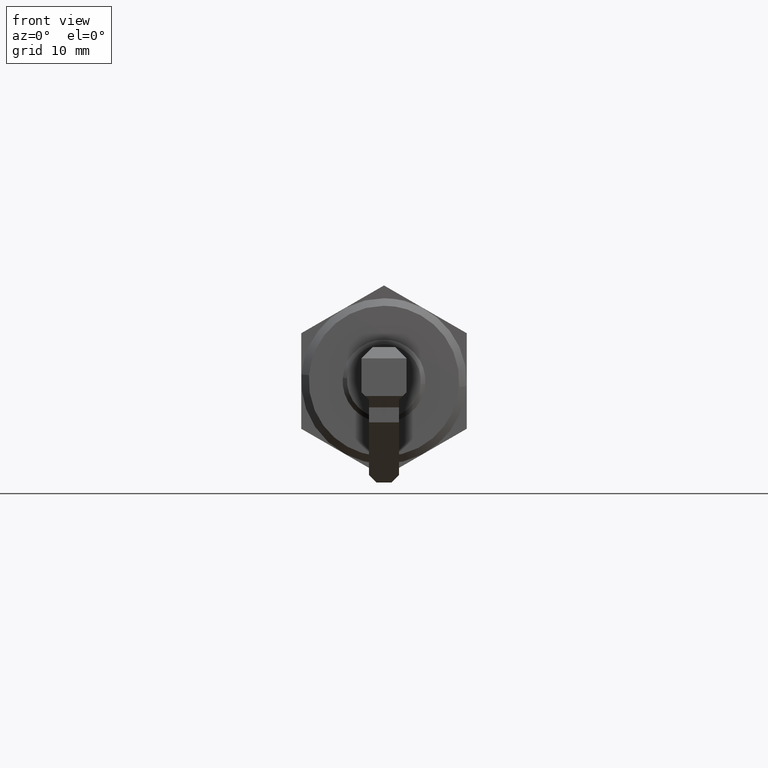
[diagram: clean part render]
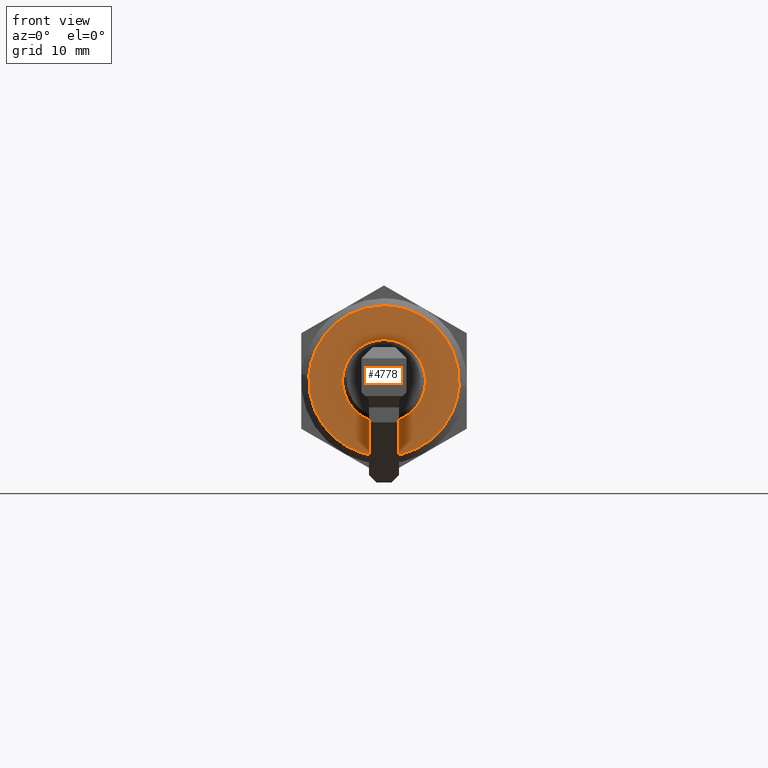
[diagram: same view with one face highlighted and labeled with its STEP entity id]
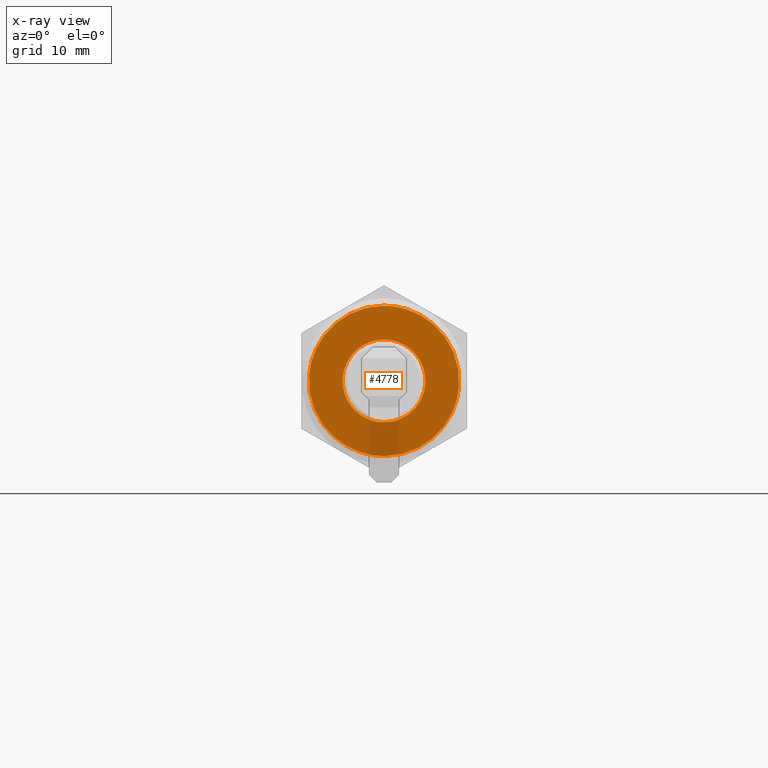
[diagram: x-ray of the same camera — body ghosted, the highlighted face saturated]
A machine part, front view. The second image highlights one B-rep face of the part: STEP entity #4778.
The next image is the same camera in x-ray: the body ghosted, the highlighted face saturated — about 8% of this face is hidden behind the body in this view.
In plain terms, the highlighted face is a freeform B-spline surface patch.
Its self-contained STEP definition (entity closure, byte-faithful):
#2757=CARTESIAN_POINT('',(-1.999999999976474,9.969173337340594,0.784590957459915));
#2758=VERTEX_POINT('',#2757);
#2764=CARTESIAN_POINT('',(-2.0,0.0,10.0));
#2765=VERTEX_POINT('',#2764);
#2766=CARTESIAN_POINT('',(-2.0,0.0,10.0));
#2767=CARTESIAN_POINT('',(-1.999999999999999,9.243904916247946,10.0));
#2768=CARTESIAN_POINT('',(-1.999999999976474,9.969173337340594,0.784590957459915));
#2776=(BOUNDED_CURVE()B_SPLINE_CURVE(2,(#2766,#2767,#2768),.UNSPECIFIED.,.F.,.U.)B_SPLINE_CURVE_WITH_KNOTS((3,3),(0.0,0.236331300626590),.UNSPECIFIED.)CURVE()GEOMETRIC_REPRESENTATION_ITEM()RATIONAL_B_SPLINE_CURVE((1.0,0.723120658612434,0.969723356158924))REPRESENTATION_ITEM(''));
#2777=EDGE_CURVE('',#2765,#2758,#2776,.T.);
#2779=CARTESIAN_POINT('',(-1.999999999976474,-9.969173337340596,-0.784590957459915));
#2780=VERTEX_POINT('',#2779);
#2781=CARTESIAN_POINT('',(-1.999999999976474,-9.969173337340596,-0.784590957459915));
#2782=CARTESIAN_POINT('',(-2.000000000000000,-9.999999999999998,-0.392901070257147));
#2783=CARTESIAN_POINT('',(-2.0,-10.0,0.0));
#2784=CARTESIAN_POINT('',(-2.000000000000000,-10.000000000000002,10.000000000000002));
#2785=CARTESIAN_POINT('',(-2.0,0.0,10.0));
#2793=(BOUNDED_CURVE()B_SPLINE_CURVE(2,(#2781,#2782,#2783,#2784,#2785),.UNSPECIFIED.,.F.,.U.)B_SPLINE_CURVE_WITH_KNOTS((3,2,3),(0.736331300626590,0.750000000000000,1.0),.UNSPECIFIED.)CURVE()GEOMETRIC_REPRESENTATION_ITEM()RATIONAL_B_SPLINE_CURVE((0.969723356158924,0.983986122574114,1.0,0.707106781186548,1.0))REPRESENTATION_ITEM(''));
#2794=EDGE_CURVE('',#2780,#2765,#2793,.T.);
#2831=CARTESIAN_POINT('',(-2.0,0.0,-10.0));
#2832=VERTEX_POINT('',#2831);
#2833=CARTESIAN_POINT('',(-2.0,0.0,-10.0));
#2834=CARTESIAN_POINT('',(-2.000000000000000,-9.243904916247892,-9.999999999999998));
#2835=CARTESIAN_POINT('',(-1.999999999976474,-9.969173337340596,-0.784590957459915));
#2843=(BOUNDED_CURVE()B_SPLINE_CURVE(2,(#2833,#2834,#2835),.UNSPECIFIED.,.F.,.U.)B_SPLINE_CURVE_WITH_KNOTS((3,3),(0.500000000000000,0.736331300626589),.UNSPECIFIED.)CURVE()GEOMETRIC_REPRESENTATION_ITEM()RATIONAL_B_SPLINE_CURVE((1.0,0.723120658612435,0.969723356158922))REPRESENTATION_ITEM(''));
#2844=EDGE_CURVE('',#2832,#2780,#2843,.T.);
#2846=CARTESIAN_POINT('',(-1.999999999976474,9.969173337340594,0.784590957459915));
#2847=CARTESIAN_POINT('',(-2.000000000000000,10.000000000000002,0.392901070257146));
#2848=CARTESIAN_POINT('',(-2.0,10.0,0.0));
#2849=CARTESIAN_POINT('',(-2.000000000000000,10.000000000000002,-10.000000000000002));
#2850=CARTESIAN_POINT('',(-2.0,0.0,-10.0));
#2858=(BOUNDED_CURVE()B_SPLINE_CURVE(2,(#2846,#2847,#2848,#2849,#2850),.UNSPECIFIED.,.F.,.U.)B_SPLINE_CURVE_WITH_KNOTS((3,2,3),(0.236331300626590,0.250000000000000,0.500000000000000),.UNSPECIFIED.)CURVE()GEOMETRIC_REPRESENTATION_ITEM()RATIONAL_B_SPLINE_CURVE((0.969723356158924,0.983986122574114,1.0,0.707106781186548,1.0))REPRESENTATION_ITEM(''));
#2859=EDGE_CURVE('',#2758,#2832,#2858,.T.);
#2883=CARTESIAN_POINT('',(-2.0,0.0,5.499900000000000));
#2884=VERTEX_POINT('',#2883);
#2885=CARTESIAN_POINT('',(-1.999999999942563,5.482945643827945,0.431517181102049));
#2886=VERTEX_POINT('',#2885);
#2887=CARTESIAN_POINT('',(-2.0,0.0,5.499900000000000));
#2888=CARTESIAN_POINT('',(-2.0,5.084055264135154,5.499900000000000));
#2889=CARTESIAN_POINT('',(-1.999999999942563,5.482945643827946,0.431517181102049));
#2897=(BOUNDED_CURVE()B_SPLINE_CURVE(2,(#2887,#2888,#2889),.UNSPECIFIED.,.F.,.U.)B_SPLINE_CURVE_WITH_KNOTS((3,3),(0.0,0.236331300601310),.UNSPECIFIED.)CURVE()GEOMETRIC_REPRESENTATION_ITEM()RATIONAL_B_SPLINE_CURVE((1.0,0.723120658642051,0.969723356106168))REPRESENTATION_ITEM(''));
#2898=EDGE_CURVE('',#2884,#2886,#2897,.T.);
#2939=CARTESIAN_POINT('',(-1.999999999942563,-5.482945643827945,-0.431517181102048));
#2940=VERTEX_POINT('',#2939);
#2946=CARTESIAN_POINT('',(-1.999999999942564,-5.482945643827945,-0.431517181102048));
#2947=CARTESIAN_POINT('',(-2.0,-5.499899999999999,-0.216091660036881));
#2948=CARTESIAN_POINT('',(-2.0,-5.499900000000000,0.0));
#2949=CARTESIAN_POINT('',(-2.0,-5.499900000000001,5.499900000000001));
#2950=CARTESIAN_POINT('',(-2.0,0.0,5.499900000000000));
#2958=(BOUNDED_CURVE()B_SPLINE_CURVE(2,(#2946,#2947,#2948,#2949,#2950),.UNSPECIFIED.,.F.,.U.)B_SPLINE_CURVE_WITH_KNOTS((3,2,3),(0.736331300601310,0.750000000000000,1.0),.UNSPECIFIED.)CURVE()GEOMETRIC_REPRESENTATION_ITEM()RATIONAL_B_SPLINE_CURVE((0.969723356106168,0.983986122544497,1.0,0.707106781186547,1.0))REPRESENTATION_ITEM(''));
#2959=EDGE_CURVE('',#2940,#2884,#2958,.T.);
#2982=CARTESIAN_POINT('',(-2.0,0.0,-5.499900000000000));
#2983=VERTEX_POINT('',#2982);
#2984=CARTESIAN_POINT('',(-1.999999999942563,5.482945643827946,0.431517181102049));
#2985=CARTESIAN_POINT('',(-2.000000000000000,5.499900000000000,0.216091660036882));
#2986=CARTESIAN_POINT('',(-2.0,5.499900000000000,0.0));
#2987=CARTESIAN_POINT('',(-2.0,5.499900000000001,-5.499900000000001));
#2988=CARTESIAN_POINT('',(-2.0,0.0,-5.499900000000000));
#2996=(BOUNDED_CURVE()B_SPLINE_CURVE(2,(#2984,#2985,#2986,#2987,#2988),.UNSPECIFIED.,.F.,.U.)B_SPLINE_CURVE_WITH_KNOTS((3,2,3),(0.236331300601310,0.250000000000000,0.500000000000000),.UNSPECIFIED.)CURVE()GEOMETRIC_REPRESENTATION_ITEM()RATIONAL_B_SPLINE_CURVE((0.969723356106168,0.983986122544497,1.0,0.707106781186547,1.0))REPRESENTATION_ITEM(''));
#2997=EDGE_CURVE('',#2886,#2983,#2996,.T.);
#2999=CARTESIAN_POINT('',(-2.0,0.0,-5.499900000000000));
#3000=CARTESIAN_POINT('',(-1.999999999999999,-5.084055264135187,-5.499900000000000));
#3001=CARTESIAN_POINT('',(-1.999999999942563,-5.482945643827945,-0.431517181102048));
#3009=(BOUNDED_CURVE()B_SPLINE_CURVE(2,(#2999,#3000,#3001),.UNSPECIFIED.,.F.,.U.)B_SPLINE_CURVE_WITH_KNOTS((3,3),(0.500000000000000,0.736331300601311),.UNSPECIFIED.)CURVE()GEOMETRIC_REPRESENTATION_ITEM()RATIONAL_B_SPLINE_CURVE((1.0,0.723120658642049,0.969723356106170))REPRESENTATION_ITEM(''));
#3010=EDGE_CURVE('',#2983,#2940,#3009,.T.);
#4761=CARTESIAN_POINT('',(-2.0,-10.995947527268431,-10.998999961236120));
#4762=CARTESIAN_POINT('',(-2.0,-10.995947527268431,10.999000497677921));
#4763=CARTESIAN_POINT('',(-2.0,10.995948063710230,-10.998999961236120));
#4764=CARTESIAN_POINT('',(-2.0,10.995948063710230,10.999000497677921));
#4765=B_SPLINE_SURFACE_WITH_KNOTS('',1,1,((#4761,#4763),(#4762,#4764)),.UNSPECIFIED.,.F.,.F.,.U.,(2,2),(2,2),(0.0,21.998000458914039),(0.0,21.991895590978661),.UNSPECIFIED.);
#4766=ORIENTED_EDGE('',*,*,#2777,.T.);
#4767=ORIENTED_EDGE('',*,*,#2859,.T.);
#4768=ORIENTED_EDGE('',*,*,#2844,.T.);
#4769=ORIENTED_EDGE('',*,*,#2794,.T.);
#4770=EDGE_LOOP('',(#4766,#4767,#4768,#4769));
#4771=FACE_OUTER_BOUND('',#4770,.T.);
#4772=ORIENTED_EDGE('',*,*,#3010,.F.);
#4773=ORIENTED_EDGE('',*,*,#2997,.F.);
#4774=ORIENTED_EDGE('',*,*,#2898,.F.);
#4775=ORIENTED_EDGE('',*,*,#2959,.F.);
#4776=EDGE_LOOP('',(#4772,#4773,#4774,#4775));
#4777=FACE_BOUND('',#4776,.T.);
#4778=ADVANCED_FACE('',(#4771,#4777),#4765,.T.);